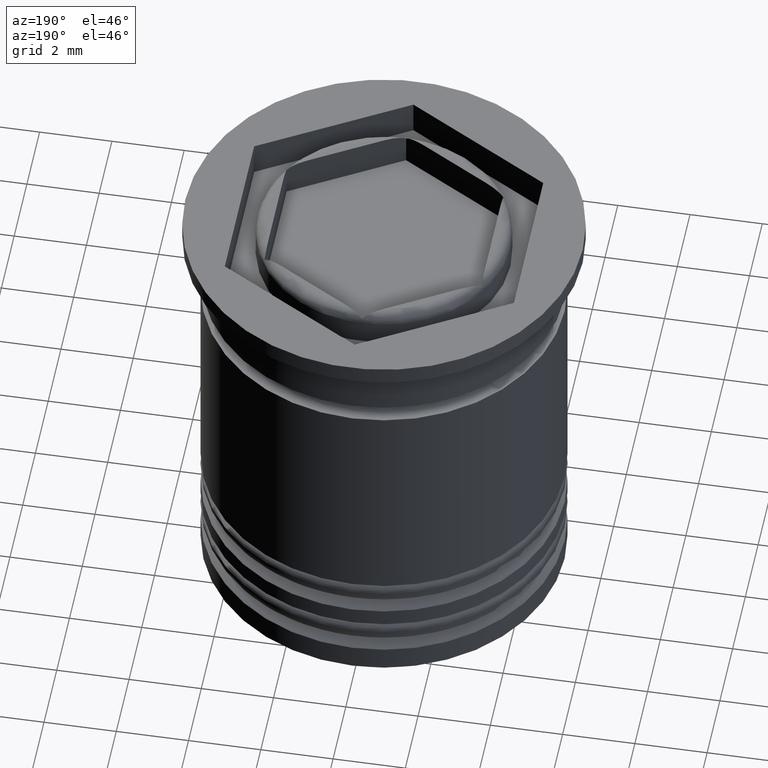
[diagram: clean part render]
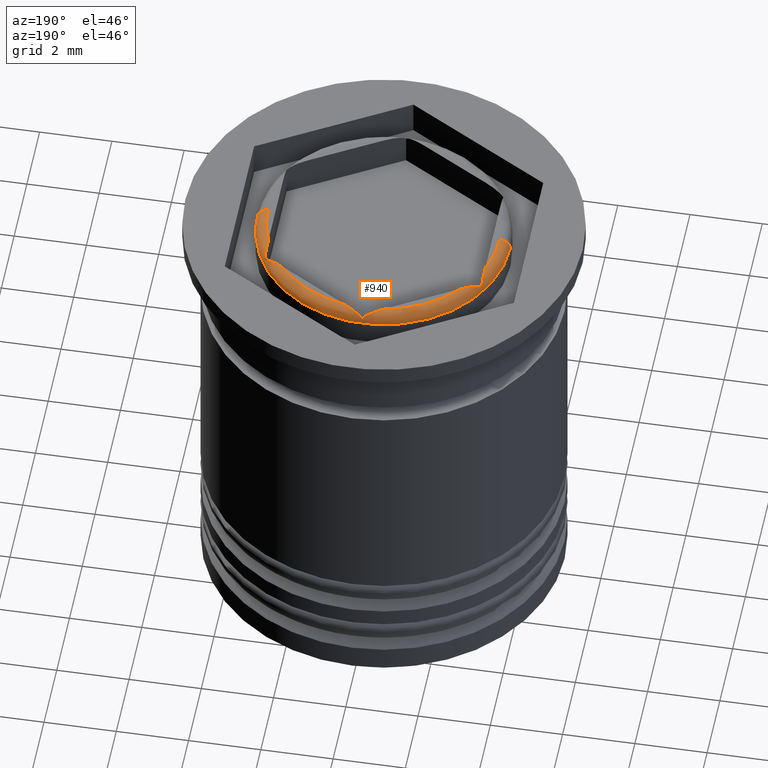
[diagram: same view with one face highlighted and labeled with its STEP entity id]
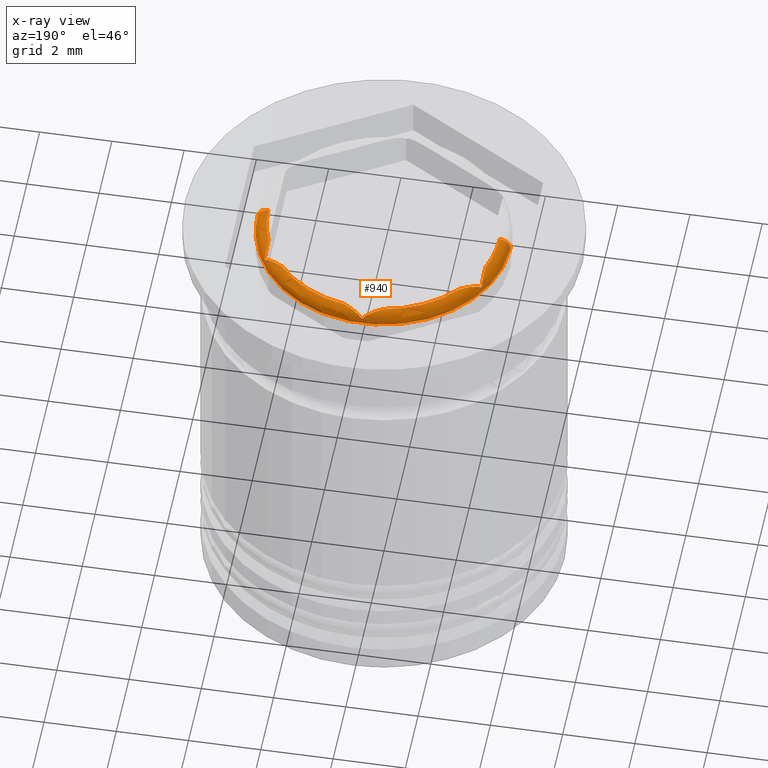
[diagram: x-ray of the same camera — body ghosted, the highlighted face saturated]
A machine part, auxiliary view. The second image highlights one B-rep face of the part: STEP entity #940.
The next image is the same camera in x-ray: the body ghosted, the highlighted face saturated — about 0% of this face is hidden behind the body in this view.
In plain terms, the highlighted toroidal blend (fillet) surface has major radius 3.2 mm and minor (blend) radius 0.3 mm.
Its self-contained STEP definition (entity closure, byte-faithful):
#16 = CARTESIAN_POINT ( 'NONE',  ( 3.000000000000001332, 1.113552872566002216, 0.000000000000000000 ) ) ;
#26 = DIRECTION ( 'NONE',  ( 1.000000000000000000, 0.000000000000000000, 0.000000000000000000 ) ) ;
#30 = ORIENTED_EDGE ( 'NONE', *, *, #1274, .F. ) ;
#34 = DIRECTION ( 'NONE',  ( -0.000000000000000000, -0.000000000000000000, 1.000000000000000000 ) ) ;
#35 = B_SPLINE_CURVE_WITH_KNOTS ( 'NONE', 3,
 ( #196, #848, #476, #1757, #389, #531, #1992, #380 ),
 .UNSPECIFIED., .F., .F.,
 ( 4, 2, 2, 4 ),
 ( 1.355252715606880543E-19, 0.0001622701831771354369, 0.0003245403663542707111, 0.0006490807327085401212 ),
 .UNSPECIFIED. ) ;
#36 = CARTESIAN_POINT ( 'NONE',  ( -0.4414355163307774332, 3.209238700954318624, 8.506328372801310169E-16 ) ) ;
#38 = ORIENTED_EDGE ( 'NONE', *, *, #411, .T. ) ;
#48 = EDGE_CURVE ( 'NONE', #1026, #1759, #473, .T. ) ;
#57 = AXIS2_PLACEMENT_3D ( 'NONE', #805, #1453, #26 ) ;
#66 = CARTESIAN_POINT ( 'NONE',  ( -3.500000000000000444, 0.000000000000000000, -0.2999999999999999334 ) ) ;
#80 = CARTESIAN_POINT ( 'NONE',  ( 0.2090381022803965150, 3.343413410515278628, -0.03872414846243826814 ) ) ;
#108 = CARTESIAN_POINT ( 'NONE',  ( -3.000000000000000888, 1.490614006399477720, -0.03872241999869861090 ) ) ;
#125 = CARTESIAN_POINT ( 'NONE',  ( -3.000000000000000444, 1.643839225324840614, -0.09422876642215764764 ) ) ;
#135 = CARTESIAN_POINT ( 'NONE',  ( -3.000000000000000444, 1.542727859935333123, -0.05299204151133367346 ) ) ;
#146 = CARTESIAN_POINT ( 'NONE',  ( -2.652575849777251804, 1.932636234222957494, -0.006590008935844869110 ) ) ;
#162 = EDGE_CURVE ( 'NONE', #536, #1188, #1157, .T. ) ;
#196 = CARTESIAN_POINT ( 'NONE',  ( 3.000000000000001776, 1.732050807568877415, -0.1576963216159583958 ) ) ;
#221 = CARTESIAN_POINT ( 'NONE',  ( -3.200000000000000622, 3.918869757271530953E-16, -0.2999999999999999334 ) ) ;
#236 = CARTESIAN_POINT ( 'NONE',  ( -2.168404344971008868E-16, 3.464101615137754830, -0.1576963216159549264 ) ) ;
#242 = B_SPLINE_CURVE_WITH_KNOTS ( 'NONE', 3,
 ( #1199, #554, #1209, #80, #545, #1537, #1701, #236 ),
 .UNSPECIFIED., .F., .F.,
 ( 4, 2, 2, 4 ),
 ( 7.842007300076290791E-19, 0.0003251077594065945636, 0.0004876616391098912220, 0.0006502155188131878262 ),
 .UNSPECIFIED. ) ;
#254 = CARTESIAN_POINT ( 'NONE',  ( 0.000000000000000000, 0.000000000000000000, -0.2999999999999999334 ) ) ;
#264 = CARTESIAN_POINT ( 'NONE',  ( -3.200000000000000622, 4.102566777143633281E-16, 0.000000000000000000 ) ) ;
#267 = DIRECTION ( 'NONE',  ( -0.000000000000000000, -0.000000000000000000, 1.000000000000000000 ) ) ;
#282 = EDGE_CURVE ( 'NONE', #1023, #1026, #2035, .T. ) ;
#308 = ORIENTED_EDGE ( 'NONE', *, *, #1127, .F. ) ;
#313 = B_SPLINE_CURVE_WITH_KNOTS ( 'NONE', 3,
 ( #1344, #724, #1229, #1678, #1043, #1967, #36, #1208 ),
 .UNSPECIFIED., .F., .F.,
 ( 4, 2, 2, 4 ),
 ( 2.825623115728058530E-19, 0.0001622701831771341629, 0.0003245403663542680548, 0.0006490807327085364349 ),
 .UNSPECIFIED. ) ;
#323 = DIRECTION ( 'NONE',  ( 0.000000000000000000, -1.000000000000000000, 0.000000000000000000 ) ) ;
#334 = CARTESIAN_POINT ( 'NONE',  ( -3.000000000000000000, 1.732050807568877859, -0.1576963216159549264 ) ) ;
#349 = ORIENTED_EDGE ( 'NONE', *, *, #1705, .F. ) ;
#372 = VERTEX_POINT ( 'NONE', #1353 ) ;
#374 = VERTEX_POINT ( 'NONE', #1674 ) ;
#380 = CARTESIAN_POINT ( 'NONE',  ( 2.464365076099294782, 2.041299775070314571, 0.000000000000000000 ) ) ;
#389 = CARTESIAN_POINT ( 'NONE',  ( 2.790909596778847757, 1.852769208153578040, -0.03872241999869915213 ) ) ;
#400 = CIRCLE ( 'NONE', #1979, 0.2999999999999999334 ) ;
#411 = EDGE_CURVE ( 'NONE', #729, #1670, #1443, .T. ) ;
#456 = CARTESIAN_POINT ( 'NONE',  ( 3.000000000000002220, 1.643278108345263666, -0.09397729767315378402 ) ) ;
#459 = VERTEX_POINT ( 'NONE', #1458 ) ;
#473 = B_SPLINE_CURVE_WITH_KNOTS ( 'NONE', 3,
 ( #2032, #1253, #146, #782, #644, #2056, #617, #2079 ),
 .UNSPECIFIED., .F., .F.,
 ( 4, 2, 2, 4 ),
 ( 1.693691732042781777E-20, 0.0003251077594065942926, 0.0004876616391098914389, 0.0006502155188131885852 ),
 .UNSPECIFIED. ) ;
#476 = CARTESIAN_POINT ( 'NONE',  ( 2.923606528868645249, 1.776156598690896038, -0.09422876642215941012 ) ) ;
#507 = CARTESIAN_POINT ( 'NONE',  ( -2.464365076099295671, 2.041299775070314126, 0.000000000000000000 ) ) ;
#531 = CARTESIAN_POINT ( 'NONE',  ( 2.653217324067877136, 1.932265878868588027, -0.006718191919573857258 ) ) ;
#536 = VERTEX_POINT ( 'NONE', #16 ) ;
#545 = CARTESIAN_POINT ( 'NONE',  ( 0.1638830919324023860, 3.369483667894954682, -0.05305027761685784243 ) ) ;
#554 = CARTESIAN_POINT ( 'NONE',  ( 0.4414950139516400918, 3.209204349986899185, -0.000000000000000000 ) ) ;
#562 = DIRECTION ( 'NONE',  ( 1.000000000000000000, 0.000000000000000000, 0.000000000000000000 ) ) ;
#593 = DIRECTION ( 'NONE',  ( 1.000000000000000000, 0.000000000000000000, 0.000000000000000000 ) ) ;
#596 = CARTESIAN_POINT ( 'NONE',  ( -3.000000000000000000, 1.113552872566005769, 0.000000000000000000 ) ) ;
#613 = CARTESIAN_POINT ( 'NONE',  ( 3.000000000000001776, 1.732050807568877415, -0.1576963216159583958 ) ) ;
#617 = CARTESIAN_POINT ( 'NONE',  ( -2.965112866681730797, 1.752192903381435851, -0.1203145750809058168 ) ) ;
#624 = CARTESIAN_POINT ( 'NONE',  ( 0.000000000000000000, 0.000000000000000000, 0.000000000000000000 ) ) ;
#627 = VERTEX_POINT ( 'NONE', #1849 ) ;
#644 = CARTESIAN_POINT ( 'NONE',  ( -2.836116908067597198, 1.826668754811678452, -0.05305027761685764814 ) ) ;
#690 = DIRECTION ( 'NONE',  ( 1.000000000000000000, 0.000000000000000000, 0.000000000000000000 ) ) ;
#706 = TOROIDAL_SURFACE ( 'NONE', #57, 3.200000000000000622, 0.2999999999999999889 ) ;
#716 = DIRECTION ( 'NONE',  ( 1.224646799147353207E-16, 1.000000000000000000, 0.000000000000000000 ) ) ;
#724 = CARTESIAN_POINT ( 'NONE',  ( -0.03499328590478502365, 3.443898232100797596, -0.1202008320270840092 ) ) ;
#729 = VERTEX_POINT ( 'NONE', #66 ) ;
#744 = AXIS2_PLACEMENT_3D ( 'NONE', #1557, #1602, #2064 ) ;
#764 = CARTESIAN_POINT ( 'NONE',  ( 3.000000000000001776, 1.542814913083275785, -0.05305027761685811999 ) ) ;
#768 = ORIENTED_EDGE ( 'NONE', *, *, #897, .F. ) ;
#778 = CARTESIAN_POINT ( 'NONE',  ( 3.000000000000001332, 1.113552872566002216, 0.000000000000000000 ) ) ;
#779 = DIRECTION ( 'NONE',  ( -0.000000000000000000, -0.000000000000000000, 1.000000000000000000 ) ) ;
#780 = VERTEX_POINT ( 'NONE', #596 ) ;
#782 = CARTESIAN_POINT ( 'NONE',  ( -2.790961897719603346, 1.852739012191353840, -0.03872414846243798364 ) ) ;
#805 = CARTESIAN_POINT ( 'NONE',  ( 0.000000000000000000, 0.000000000000000000, -0.2999999999999999334 ) ) ;
#847 = CARTESIAN_POINT ( 'NONE',  ( 2.464365076099294782, 2.041299775070314571, 0.000000000000000000 ) ) ;
#848 = CARTESIAN_POINT ( 'NONE',  ( 2.965006714095217877, 1.752254190605834872, -0.1202008320270856884 ) ) ;
#861 = ORIENTED_EDGE ( 'NONE', *, *, #1058, .F. ) ;
#897 = EDGE_CURVE ( 'NONE', #374, #536, #1874, .T. ) ;
#940 = ADVANCED_FACE ( 'NONE', ( #1170 ), #706, .T. ) ;
#967 = DIRECTION ( 'NONE',  ( 0.000000000000000000, 0.000000000000000000, -1.000000000000000000 ) ) ;
#1009 = CARTESIAN_POINT ( 'NONE',  ( -0.5356349239007045515, 3.154852647636318785, 0.000000000000000000 ) ) ;
#1023 = VERTEX_POINT ( 'NONE', #1009 ) ;
#1026 = VERTEX_POINT ( 'NONE', #507 ) ;
#1037 = EDGE_CURVE ( 'NONE', #1188, #1465, #35, .T. ) ;
#1043 = CARTESIAN_POINT ( 'NONE',  ( -0.2090904032211537422, 3.343383214553053762, -0.03872241999869841661 ) ) ;
#1058 = EDGE_CURVE ( 'NONE', #459, #627, #242, .T. ) ;
#1093 = CARTESIAN_POINT ( 'NONE',  ( -2.999999999999999556, 1.331620664969456858, -0.006718191919573731491 ) ) ;
#1101 = CARTESIAN_POINT ( 'NONE',  ( -3.000000000000000000, 1.732050807568877859, -0.1576963216159549264 ) ) ;
#1102 = DIRECTION ( 'NONE',  ( 1.000000000000000000, 0.000000000000000000, 0.000000000000000000 ) ) ;
#1107 = AXIS2_PLACEMENT_3D ( 'NONE', #221, #716, #1210 ) ;
#1118 = ORIENTED_EDGE ( 'NONE', *, *, #1450, .F. ) ;
#1127 = EDGE_CURVE ( 'NONE', #729, #372, #1256, .T. ) ;
#1147 = CIRCLE ( 'NONE', #744, 3.200000000000000622 ) ;
#1157 = B_SPLINE_CURVE_WITH_KNOTS ( 'NONE', 3,
 ( #778, #1905, #1876, #1569, #764, #456, #2038, #613 ),
 .UNSPECIFIED., .F., .F.,
 ( 4, 2, 2, 4 ),
 ( 0.000000000000000000, 0.0003251077594065961899, 0.0004876616391098942578, 0.0006502155188131923799 ),
 .UNSPECIFIED. ) ;
#1166 = ORIENTED_EDGE ( 'NONE', *, *, #1037, .F. ) ;
#1170 = FACE_OUTER_BOUND ( 'NONE', #1319, .T. ) ;
#1177 = CARTESIAN_POINT ( 'NONE',  ( 0.000000000000000000, 0.000000000000000000, 0.000000000000000000 ) ) ;
#1188 = VERTEX_POINT ( 'NONE', #1390 ) ;
#1199 = CARTESIAN_POINT ( 'NONE',  ( 0.5356349239007047736, 3.154852647636318341, 0.000000000000000000 ) ) ;
#1208 = CARTESIAN_POINT ( 'NONE',  ( -0.5356349239007045515, 3.154852647636318785, 0.000000000000000000 ) ) ;
#1209 = CARTESIAN_POINT ( 'NONE',  ( 0.3474241502227468081, 3.263516188483674973, -0.006590008935845257688 ) ) ;
#1210 = DIRECTION ( 'NONE',  ( -1.000000000000000000, 1.224646799147353207E-16, 0.000000000000000000 ) ) ;
#1229 = CARTESIAN_POINT ( 'NONE',  ( -0.07639347113135709633, 3.419995824015736208, -0.09422876642215748111 ) ) ;
#1253 = CARTESIAN_POINT ( 'NONE',  ( -2.558504986048359964, 1.986948072719734837, -1.905824131322174993E-18 ) ) ;
#1256 = CIRCLE ( 'NONE', #1347, 3.500000000000000444 ) ;
#1262 = EDGE_CURVE ( 'NONE', #1465, #459, #1646, .T. ) ;
#1274 = EDGE_CURVE ( 'NONE', #1759, #780, #1895, .T. ) ;
#1319 = EDGE_LOOP ( 'NONE', ( #308, #38, #1325, #30, #1588, #1599, #1118, #861, #1878, #1166, #1389, #768, #349 ) ) ;
#1325 = ORIENTED_EDGE ( 'NONE', *, *, #1682, .F. ) ;
#1344 = CARTESIAN_POINT ( 'NONE',  ( -2.168404344971008868E-16, 3.464101615137754830, -0.1576963216159549264 ) ) ;
#1345 = AXIS2_PLACEMENT_3D ( 'NONE', #624, #779, #1102 ) ;
#1347 = AXIS2_PLACEMENT_3D ( 'NONE', #254, #2001, #562 ) ;
#1353 = CARTESIAN_POINT ( 'NONE',  ( 3.500000000000000444, 4.286263797015737088E-16, -0.2999999999999999334 ) ) ;
#1389 = ORIENTED_EDGE ( 'NONE', *, *, #162, .F. ) ;
#1390 = CARTESIAN_POINT ( 'NONE',  ( 3.000000000000001776, 1.732050807568877415, -0.1576963216159583958 ) ) ;
#1443 = CIRCLE ( 'NONE', #1107, 0.2999999999999999334 ) ;
#1450 = EDGE_CURVE ( 'NONE', #627, #1023, #313, .T. ) ;
#1453 = DIRECTION ( 'NONE',  ( -0.000000000000000000, -0.000000000000000000, 1.000000000000000000 ) ) ;
#1458 = CARTESIAN_POINT ( 'NONE',  ( 0.5356349239007047736, 3.154852647636318341, 0.000000000000000000 ) ) ;
#1465 = VERTEX_POINT ( 'NONE', #847 ) ;
#1516 = AXIS2_PLACEMENT_3D ( 'NONE', #1177, #34, #690 ) ;
#1537 = CARTESIAN_POINT ( 'NONE',  ( 0.07687941269016514145, 3.419715265525948844, -0.09397729767315267380 ) ) ;
#1557 = CARTESIAN_POINT ( 'NONE',  ( 0.000000000000000000, 0.000000000000000000, 0.000000000000000000 ) ) ;
#1559 = CARTESIAN_POINT ( 'NONE',  ( -3.000000000000000444, 1.691644041494963835, -0.1202008320270840647 ) ) ;
#1569 = CARTESIAN_POINT ( 'NONE',  ( 3.000000000000002220, 1.490674398323925898, -0.03872414846243867059 ) ) ;
#1588 = ORIENTED_EDGE ( 'NONE', *, *, #48, .F. ) ;
#1599 = ORIENTED_EDGE ( 'NONE', *, *, #282, .F. ) ;
#1602 = DIRECTION ( 'NONE',  ( -0.000000000000000000, -0.000000000000000000, 1.000000000000000000 ) ) ;
#1646 = CIRCLE ( 'NONE', #2011, 3.200000000000000622 ) ;
#1670 = VERTEX_POINT ( 'NONE', #264 ) ;
#1674 = CARTESIAN_POINT ( 'NONE',  ( 3.200000000000000622, 0.000000000000000000, 0.000000000000000000 ) ) ;
#1678 = CARTESIAN_POINT ( 'NONE',  ( -0.1639584821700014183, 3.369440141320983351, -0.05299204151133352775 ) ) ;
#1682 = EDGE_CURVE ( 'NONE', #780, #1670, #1147, .T. ) ;
#1701 = CARTESIAN_POINT ( 'NONE',  ( 0.03488713331826957115, 3.443959519325197949, -0.1203145750809056364 ) ) ;
#1705 = EDGE_CURVE ( 'NONE', #372, #374, #400, .T. ) ;
#1737 = CARTESIAN_POINT ( 'NONE',  ( -2.999999999999999556, 1.222324979202006778, 8.752203214434849909E-16 ) ) ;
#1757 = CARTESIAN_POINT ( 'NONE',  ( 2.836041517830000469, 1.826712281385649339, -0.05299204151133455470 ) ) ;
#1759 = VERTEX_POINT ( 'NONE', #334 ) ;
#1761 = CARTESIAN_POINT ( 'NONE',  ( 3.200000000000000622, 0.000000000000000000, -0.2999999999999999334 ) ) ;
#1849 = CARTESIAN_POINT ( 'NONE',  ( -2.168404344971008868E-16, 3.464101615137754830, -0.1576963216159549264 ) ) ;
#1874 = CIRCLE ( 'NONE', #1345, 3.200000000000000622 ) ;
#1876 = CARTESIAN_POINT ( 'NONE',  ( 3.000000000000000888, 1.330879954260715703, -0.006590008935845116309 ) ) ;
#1878 = ORIENTED_EDGE ( 'NONE', *, *, #1262, .F. ) ;
#1895 = B_SPLINE_CURVE_WITH_KNOTS ( 'NONE', 3,
 ( #1101, #1559, #125, #135, #108, #1093, #1737, #2027 ),
 .UNSPECIFIED., .F., .F.,
 ( 4, 2, 2, 4 ),
 ( 2.710505431213761085E-19, 0.0001622701831771344069, 0.0003245403663542685427, 0.0006490807327085360012 ),
 .UNSPECIFIED. ) ;
#1905 = CARTESIAN_POINT ( 'NONE',  ( 3.000000000000000888, 1.222256277267161462, -9.529120656610874963E-19 ) ) ;
#1967 = CARTESIAN_POINT ( 'NONE',  ( -0.3467826759321240293, 3.263886543838044663, -0.006718191919573663837 ) ) ;
#1979 = AXIS2_PLACEMENT_3D ( 'NONE', #1761, #323, #967 ) ;
#1992 = CARTESIAN_POINT ( 'NONE',  ( 2.558564483669223399, 1.986913721752314954, 8.261394678886942969E-16 ) ) ;
#2001 = DIRECTION ( 'NONE',  ( 0.000000000000000000, 0.000000000000000000, -1.000000000000000000 ) ) ;
#2011 = AXIS2_PLACEMENT_3D ( 'NONE', #2051, #267, #593 ) ;
#2027 = CARTESIAN_POINT ( 'NONE',  ( -3.000000000000000000, 1.113552872566005769, 0.000000000000000000 ) ) ;
#2032 = CARTESIAN_POINT ( 'NONE',  ( -2.464365076099295671, 2.041299775070314126, 0.000000000000000000 ) ) ;
#2035 = CIRCLE ( 'NONE', #1516, 3.200000000000000622 ) ;
#2038 = CARTESIAN_POINT ( 'NONE',  ( 3.000000000000001776, 1.691766615943763430, -0.1203145750809069270 ) ) ;
#2051 = CARTESIAN_POINT ( 'NONE',  ( 0.000000000000000000, 0.000000000000000000, 0.000000000000000000 ) ) ;
#2056 = CARTESIAN_POINT ( 'NONE',  ( -2.923120587309835372, 1.776437157180684512, -0.09397729767315254890 ) ) ;
#2064 = DIRECTION ( 'NONE',  ( 1.000000000000000000, 0.000000000000000000, 0.000000000000000000 ) ) ;
#2079 = CARTESIAN_POINT ( 'NONE',  ( -3.000000000000000000, 1.732050807568877859, -0.1576963216159549264 ) ) ;